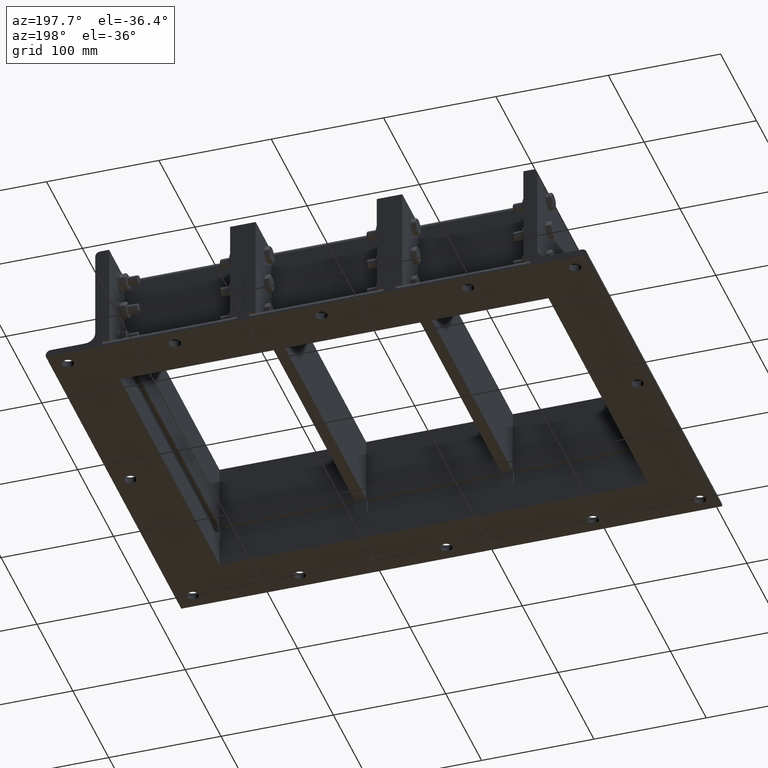
[diagram: clean part render]
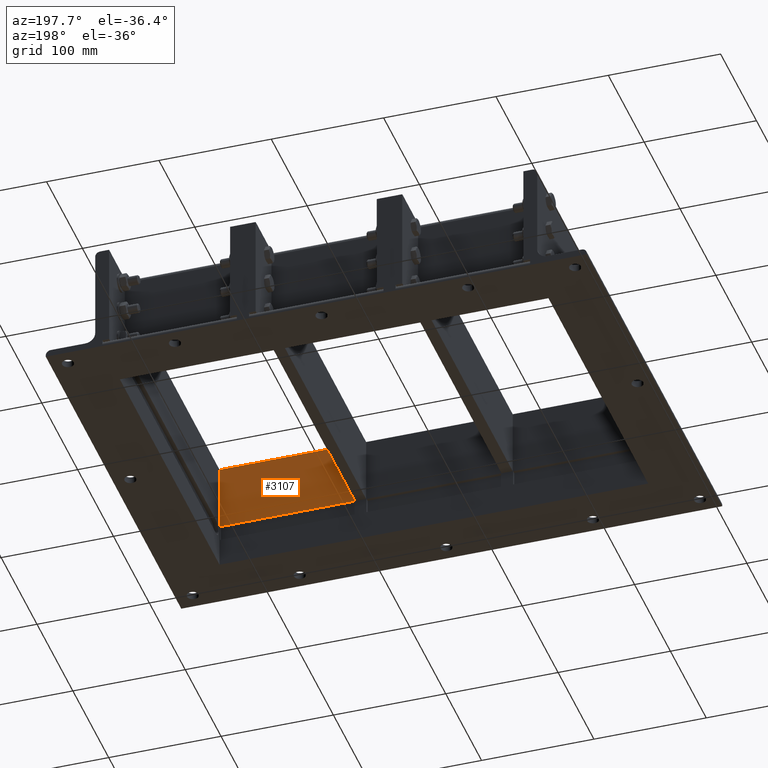
[diagram: same view with one face highlighted and labeled with its STEP entity id]
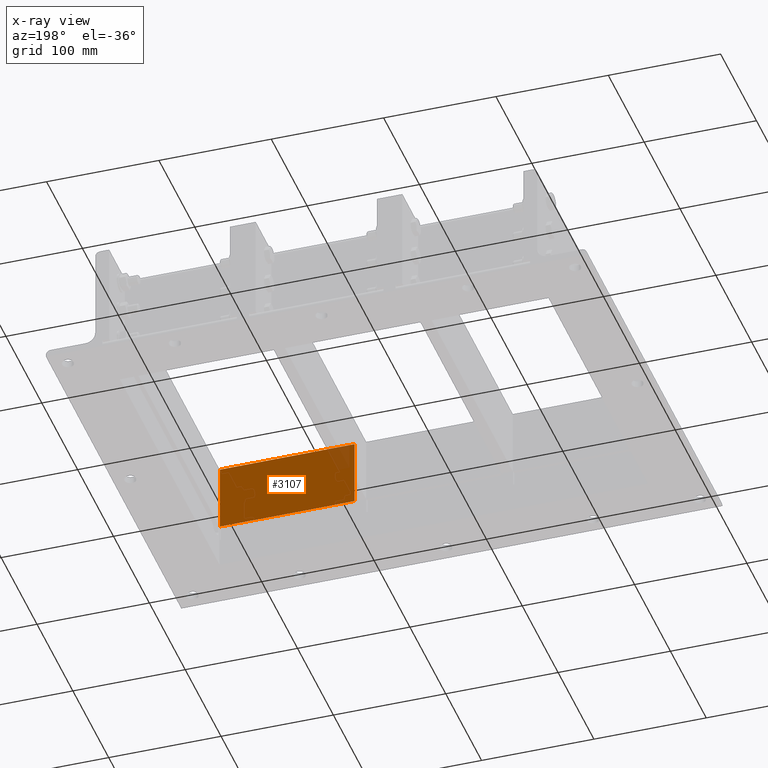
[diagram: x-ray of the same camera — body ghosted, the highlighted face saturated]
A machine part, auxiliary view. The second image highlights one B-rep face of the part: STEP entity #3107.
The next image is the same camera in x-ray: the body ghosted, the highlighted face saturated — about 5% of this face is hidden behind the body in this view.
In plain terms, the highlighted planar face has unit normal (0, 1, 0).
Its self-contained STEP definition (entity closure, byte-faithful):
#2935=CARTESIAN_POINT('',(-5.999999999999992,0.0,34.000000000000014));
#2936=VERTEX_POINT('',#2935);
#2945=CARTESIAN_POINT('',(-5.999999999999992,119.80000000000001,34.000000000000014));
#2946=VERTEX_POINT('',#2945);
#2947=CARTESIAN_POINT('',(-5.999999999999992,119.80000000000001,34.000000000000021));
#2948=DIRECTION('',(0.0,-1.0,0.0));
#2949=VECTOR('',#2948,119.80000000000001);
#2950=LINE('',#2947,#2949);
#2951=EDGE_CURVE('',#2946,#2936,#2950,.T.);
#3000=CARTESIAN_POINT('',(-5.999999999999984,119.80000000000001,93.999999999999986));
#3001=VERTEX_POINT('',#3000);
#3002=CARTESIAN_POINT('',(-5.999999999999991,119.80000000000001,34.000000000000021));
#3003=DIRECTION('',(0.0,0.0,1.0));
#3004=VECTOR('',#3003,59.999999999999964);
#3005=LINE('',#3002,#3004);
#3006=EDGE_CURVE('',#2946,#3001,#3005,.T.);
#3084=CARTESIAN_POINT('',(-5.999999999999996,0.0,-5.999999999999996));
#3085=DIRECTION('',(-1.0,0.0,0.0));
#3086=DIRECTION('',(0.0,0.0,1.0));
#3087=AXIS2_PLACEMENT_3D('',#3084,#3085,#3086);
#3088=PLANE('',#3087);
#3089=ORIENTED_EDGE('',*,*,#2951,.T.);
#3090=CARTESIAN_POINT('',(-5.999999999999984,0.0,93.999999999999986));
#3091=VERTEX_POINT('',#3090);
#3092=CARTESIAN_POINT('',(-5.999999999999984,0.0,93.999999999999986));
#3093=DIRECTION('',(0.0,0.0,-1.0));
#3094=VECTOR('',#3093,59.999999999999964);
#3095=LINE('',#3092,#3094);
#3096=EDGE_CURVE('',#3091,#2936,#3095,.T.);
#3097=ORIENTED_EDGE('',*,*,#3096,.F.);
#3098=CARTESIAN_POINT('',(-5.999999999999984,0.0,93.999999999999986));
#3099=DIRECTION('',(0.0,1.0,0.0));
#3100=VECTOR('',#3099,119.80000000000001);
#3101=LINE('',#3098,#3100);
#3102=EDGE_CURVE('',#3091,#3001,#3101,.T.);
#3103=ORIENTED_EDGE('',*,*,#3102,.T.);
#3104=ORIENTED_EDGE('',*,*,#3006,.F.);
#3105=EDGE_LOOP('',(#3089,#3097,#3103,#3104));
#3106=FACE_OUTER_BOUND('',#3105,.T.);
#3107=ADVANCED_FACE('',(#3106),#3088,.T.);